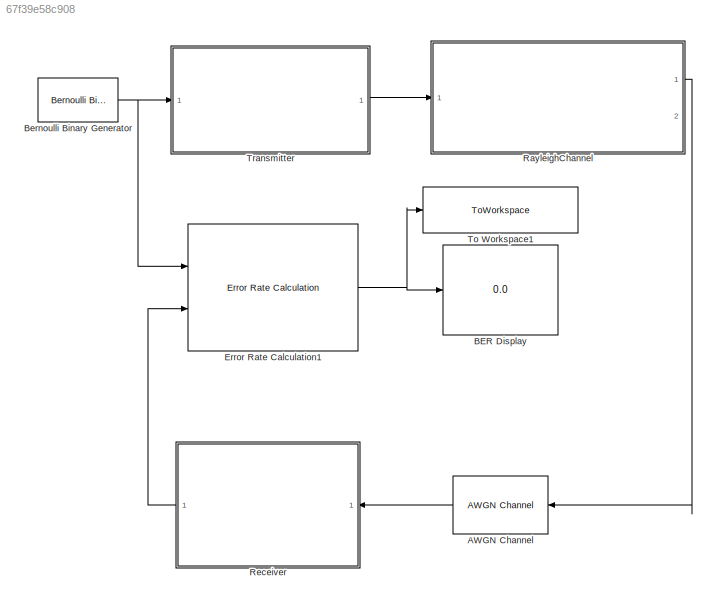
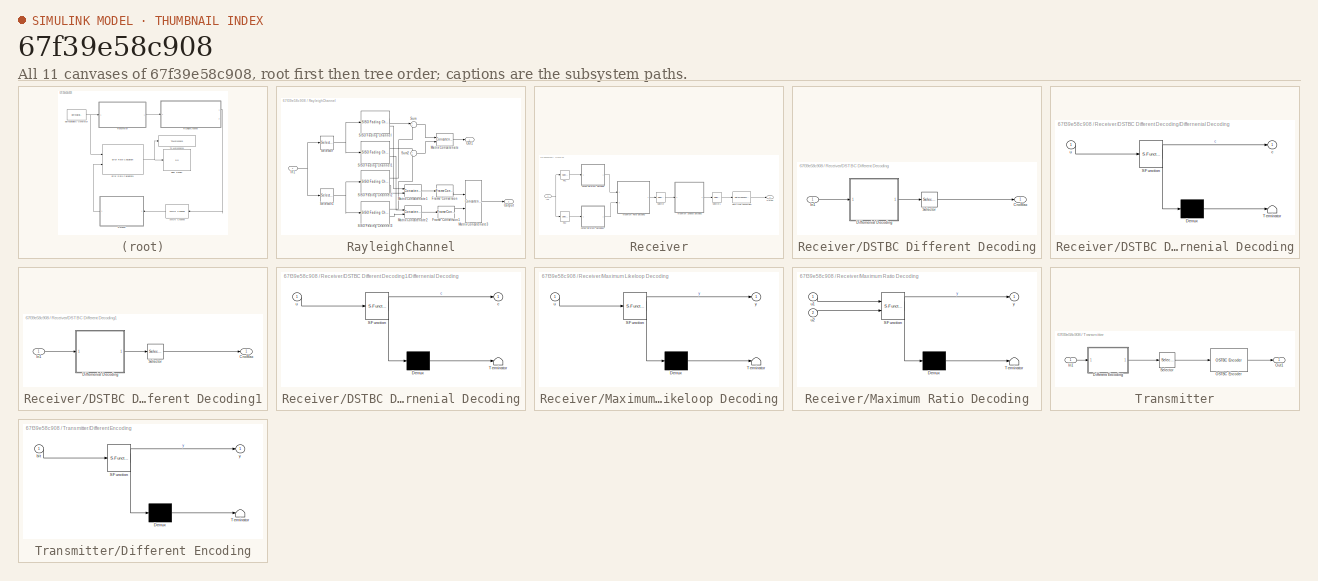
[diagram: thumbnail index - all 11 canvases of the model, root first then tree order]
MODEL slx_67f39e58c908
KIND model
CONFIG AbsTol = auto
CONFIG EnableMultiTasking = off
CONFIG FixedStep = auto
CONFIG MaxStep = auto
CONFIG MinStep = auto
CONFIG RelTol = 1e-3
CONFIG SampleTimeConstraint = Unconstrained
CONFIG Solver = VariableStepAuto
CONFIG SolverName = VariableStepAuto
CONFIG StartTime = 0.0
CONFIG StopTime = 10
WORKSPACE source: MAT-file member
WORKSPACE FrameLength = 100
BLOCK [Reference] AWGN Channel  REF=commchan3/AWGN
Channel
  Ports = [1, 1]
  SourceBlock = commchan3/AWGN\nChannel
  SourceProductBaseCode = CM
  SourceProductName = Communications System Toolbox
  SourceType = AWGN Channel
  UserDataPersistent = on
BLOCK [Display] BER Display
  Decimation = 1
  Ports = [1]
BLOCK [Reference] Bernoulli Binary Generator  REF=commrandsrc3/Bernoulli Binary
Generator
  Ports = [0, 1]
  SourceBlock = commrandsrc3/Bernoulli Binary\nGenerator
  SourceProductBaseCode = CM
  SourceProductName = Communications System Toolbox
  SourceType = Bernoulli Binary Generator
BLOCK [Reference] Error Rate Calculation1  REF=commsink2/Error Rate
Calculation
  Ports = [2, 1]
  SourceBlock = commsink2/Error Rate\nCalculation
  SourceProductBaseCode = CM
  SourceProductName = Communications System Toolbox
  SourceType = Error Rate Calculation
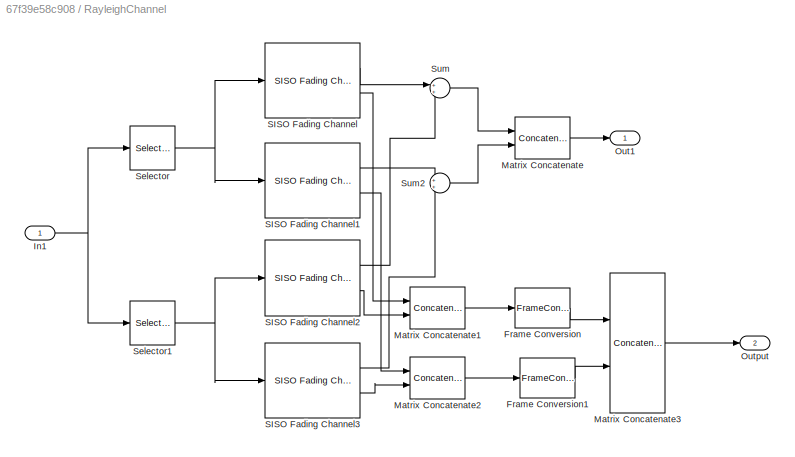
BLOCK [SubSystem] RayleighChannel
  Ports = [1, 2]
  RequestExecContextInheritance = off
BLOCK [FrameConversion] RayleighChannel/Frame Conversion
  OutFrame = Sample-based
  Ports = [1, 1]
BLOCK [FrameConversion] RayleighChannel/Frame Conversion1
  OutFrame = Sample-based
  Ports = [1, 1]
BLOCK [Inport] RayleighChannel/In1
  IconDisplay = Port number
BLOCK [Concatenate] RayleighChannel/Matrix Concatenate
  ConcatenateDimension = 2
  Mode = Multidimensional array
  Ports = [2, 1]
BLOCK [Concatenate] RayleighChannel/Matrix Concatenate1
  ConcatenateDimension = 2
  Mode = Multidimensional array
  Ports = [2, 1]
BLOCK [Concatenate] RayleighChannel/Matrix Concatenate2
  ConcatenateDimension = 2
  Mode = Multidimensional array
  Ports = [2, 1]
BLOCK [Concatenate] RayleighChannel/Matrix Concatenate3
  ConcatenateDimension = 3
  Mode = Multidimensional array
  Ports = [2, 1]
BLOCK [Outport] RayleighChannel/Out1
  IconDisplay = Port number
BLOCK [Outport] RayleighChannel/Output
  IconDisplay = Port number
  Port = 2
BLOCK [Reference] RayleighChannel/SISO Fading Channel  REF=commchan3/SISO Fading Channel
  Ports = [1, 2]
  SourceBlock = commchan3/SISO Fading Channel
  SourceProductBaseCode = CM
  SourceProductName = Communications System Toolbox
  SourceType = SISO Fading Channel
BLOCK [Reference] RayleighChannel/SISO Fading Channel1  REF=commchan3/SISO Fading Channel
  Ports = [1, 2]
  SourceBlock = commchan3/SISO Fading Channel
  SourceProductBaseCode = CM
  SourceProductName = Communications System Toolbox
  SourceType = SISO Fading Channel
BLOCK [Reference] RayleighChannel/SISO Fading Channel2  REF=commchan3/SISO Fading Channel
  Ports = [1, 2]
  SourceBlock = commchan3/SISO Fading Channel
  SourceProductBaseCode = CM
  SourceProductName = Communications System Toolbox
  SourceType = SISO Fading Channel
BLOCK [Reference] RayleighChannel/SISO Fading Channel3  REF=commchan3/SISO Fading Channel
  Ports = [1, 2]
  SourceBlock = commchan3/SISO Fading Channel
  SourceProductBaseCode = CM
  SourceProductName = Communications System Toolbox
  SourceType = SISO Fading Channel
BLOCK [Selector] RayleighChannel/Selector
  IndexOptions = Select all,Index vector (dialog)
  Indices = [1 3],1
  InputPortWidth = 3
  NumberOfDimensions = 2
  OutputSizes = 1,1
  Ports = [1, 1]
BLOCK [Selector] RayleighChannel/Selector1
  IndexOptions = Select all,Index vector (dialog)
  Indices = [1 3],2
  InputPortWidth = 3
  NumberOfDimensions = 2
  OutputSizes = 1,1
  Ports = [1, 1]
BLOCK [Sum] RayleighChannel/Sum
  IconShape = round
  InputSameDT = off
  OutDataTypeStr = Inherit: Inherit via internal rule
  Ports = [2, 1]
  SaturateOnIntegerOverflow = off
BLOCK [Sum] RayleighChannel/Sum2
  IconShape = round
  InputSameDT = off
  OutDataTypeStr = Inherit: Inherit via internal rule
  Ports = [2, 1]
  SaturateOnIntegerOverflow = off
BLOCK [SubSystem] Receiver
  Ports = [1, 1]
  RequestExecContextInheritance = off
BLOCK [SubSystem] Receiver/DSTBC Different Decoding
  Ports = [1, 1]
  RequestExecContextInheritance = off
BLOCK [Outport] Receiver/DSTBC Different Decoding/CnoMax
  IconDisplay = Port number
BLOCK [SubSystem] Receiver/DSTBC Different Decoding/Differnenial Decoding
  ErrorFcn = Stateflow.Translate.translate
  PermitHierarchicalResolution = ExplicitOnly
  Ports = [1, 1]
  RequestExecContextInheritance = off
  SFBlockType = MATLAB Function
  TreatAsAtomicUnit = on
BLOCK [Demux] Receiver/DSTBC Different Decoding/Differnenial Decoding/ Demux 
  Outputs = 1
  Ports = [1, 1]
BLOCK [S-Function] Receiver/DSTBC Different Decoding/Differnenial Decoding/ SFunction 
  EnableBusSupport = on
  FunctionName = sf_sfun
  PortCounts = [1 2]
  Ports = [1, 2]
  SFcnIsStateOwnerBlock = off
  SFunctionDeploymentMode = off
  Tag = Stateflow S-Function naibaoDSTBC_22_qpsk 4
BLOCK [Terminator] Receiver/DSTBC Different Decoding/Differnenial Decoding/ Terminator 
BLOCK [Outport] Receiver/DSTBC Different Decoding/Differnenial Decoding/c
  IconDisplay = Port number
BLOCK [Inport] Receiver/DSTBC Different Decoding/Differnenial Decoding/u
  IconDisplay = Port number
BLOCK [Inport] Receiver/DSTBC Different Decoding/In1
  IconDisplay = Port number
BLOCK [Selector] Receiver/DSTBC Different Decoding/Selector
  IndexOptions = Select all,Index vector (dialog)
  Indices = [1 3],1
  InputPortWidth = 3
  NumberOfDimensions = 2
  OutputSizes = 1,1
  Ports = [1, 1]
BLOCK [SubSystem] Receiver/DSTBC Different Decoding1
  Ports = [1, 1]
  RequestExecContextInheritance = off
BLOCK [Outport] Receiver/DSTBC Different Decoding1/CnoMax
  IconDisplay = Port number
BLOCK [SubSystem] Receiver/DSTBC Different Decoding1/Differnenial Decoding
  ErrorFcn = Stateflow.Translate.translate
  PermitHierarchicalResolution = ExplicitOnly
  Ports = [1, 1]
  RequestExecContextInheritance = off
  SFBlockType = MATLAB Function
  TreatAsAtomicUnit = on
BLOCK [Demux] Receiver/DSTBC Different Decoding1/Differnenial Decoding/ Demux 
  Outputs = 1
  Ports = [1, 1]
BLOCK [S-Function] Receiver/DSTBC Different Decoding1/Differnenial Decoding/ SFunction 
  EnableBusSupport = on
  FunctionName = sf_sfun
  PortCounts = [1 2]
  Ports = [1, 2]
  SFcnIsStateOwnerBlock = off
  SFunctionDeploymentMode = off
  Tag = Stateflow S-Function naibaoDSTBC_22_qpsk 1
BLOCK [Terminator] Receiver/DSTBC Different Decoding1/Differnenial Decoding/ Terminator 
BLOCK [Outport] Receiver/DSTBC Different Decoding1/Differnenial Decoding/c
  IconDisplay = Port number
BLOCK [Inport] Receiver/DSTBC Different Decoding1/Differnenial Decoding/u
  IconDisplay = Port number
BLOCK [Inport] Receiver/DSTBC Different Decoding1/In1
  IconDisplay = Port number
BLOCK [Selector] Receiver/DSTBC Different Decoding1/Selector
  IndexOptions = Select all,Index vector (dialog)
  Indices = [1 3],1
  InputPortWidth = 3
  NumberOfDimensions = 2
  OutputSizes = 1,1
  Ports = [1, 1]
BLOCK [DataTypeConversion] Receiver/Data Type Conversion
  OutDataTypeStr = boolean
  RndMeth = Floor
  SaturateOnIntegerOverflow = off
BLOCK [Inport] Receiver/In1
  IconDisplay = Port number
BLOCK [SubSystem] Receiver/Maximum Likeloop Decoding
  ErrorFcn = Stateflow.Translate.translate
  PermitHierarchicalResolution = ExplicitOnly
  Ports = [1, 1]
  RequestExecContextInheritance = off
  SFBlockType = MATLAB Function
  TreatAsAtomicUnit = on
BLOCK [Demux] Receiver/Maximum Likeloop Decoding/ Demux 
  Outputs = 1
  Ports = [1, 1]
BLOCK [S-Function] Receiver/Maximum Likeloop Decoding/ SFunction 
  EnableBusSupport = on
  FunctionName = sf_sfun
  PortCounts = [1 2]
  Ports = [1, 2]
  SFcnIsStateOwnerBlock = off
  SFunctionDeploymentMode = off
  Tag = Stateflow S-Function naibaoDSTBC_22_qpsk 3
BLOCK [Terminator] Receiver/Maximum Likeloop Decoding/ Terminator 
BLOCK [Inport] Receiver/Maximum Likeloop Decoding/u
  IconDisplay = Port number
BLOCK [Outport] Receiver/Maximum Likeloop Decoding/y
  IconDisplay = Port number
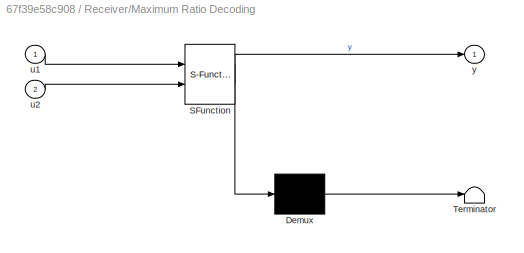
BLOCK [SubSystem] Receiver/Maximum Ratio Decoding
  ErrorFcn = Stateflow.Translate.translate
  PermitHierarchicalResolution = ExplicitOnly
  Ports = [2, 1]
  RequestExecContextInheritance = off
  SFBlockType = MATLAB Function
  TreatAsAtomicUnit = on
BLOCK [Demux] Receiver/Maximum Ratio Decoding/ Demux 
  Outputs = 1
  Ports = [1, 1]
BLOCK [S-Function] Receiver/Maximum Ratio Decoding/ SFunction 
  EnableBusSupport = on
  FunctionName = sf_sfun
  PortCounts = [2 2]
  Ports = [2, 2]
  SFcnIsStateOwnerBlock = off
  SFunctionDeploymentMode = off
  Tag = Stateflow S-Function naibaoDSTBC_22_qpsk 5
BLOCK [Terminator] Receiver/Maximum Ratio Decoding/ Terminator 
BLOCK [Inport] Receiver/Maximum Ratio Decoding/u1
  IconDisplay = Port number
BLOCK [Inport] Receiver/Maximum Ratio Decoding/u2
  IconDisplay = Port number
  Port = 2
BLOCK [Outport] Receiver/Maximum Ratio Decoding/y
  IconDisplay = Port number
BLOCK [Outport] Receiver/Output
  IconDisplay = Port number
BLOCK [Selector] Receiver/Rx1
  IndexOptions = Select all,Index vector (dialog)
  Indices = [1 3],1
  InputPortWidth = 3
  NumberOfDimensions = 2
  OutputSizes = 1,1
  Ports = [1, 1]
BLOCK [Selector] Receiver/Rx2
  IndexOptions = Select all,Index vector (dialog)
  Indices = [1 3],2
  InputPortWidth = 3
  NumberOfDimensions = 2
  OutputSizes = 1,1
  Ports = [1, 1]
BLOCK [Selector] Receiver/Selector
  IndexOptions = Select all,Index vector (dialog)
  Indices = [1 3],1
  InputPortWidth = 3
  NumberOfDimensions = 2
  OutputSizes = 1,1
  Ports = [1, 1]
BLOCK [Selector] Receiver/Selector1
  IndexOptions = Select all,Index vector (dialog)
  Indices = [1 3],1
  InputPortWidth = 3
  NumberOfDimensions = 2
  OutputSizes = 1,1
  Ports = [1, 1]
BLOCK [ToWorkspace] To Workspace1
  MaxDataPoints = 1
  Ports = [1]
  SampleTime = -1
  Save2DSignal = 2-D array (concatenate along first dimension)
  VariableName = BER_DSTBC_22_QPSK
BLOCK [SubSystem] Transmitter
  Ports = [1, 1]
  RequestExecContextInheritance = off
BLOCK [SubSystem] Transmitter/Different Encoding
  ErrorFcn = Stateflow.Translate.translate
  PermitHierarchicalResolution = ExplicitOnly
  Ports = [1, 1]
  RequestExecContextInheritance = off
  SFBlockType = MATLAB Function
  TreatAsAtomicUnit = on
BLOCK [Demux] Transmitter/Different Encoding/ Demux 
  Outputs = 1
  Ports = [1, 1]
BLOCK [S-Function] Transmitter/Different Encoding/ SFunction 
  EnableBusSupport = on
  FunctionName = sf_sfun
  PortCounts = [1 2]
  Ports = [1, 2]
  SFcnIsStateOwnerBlock = off
  SFunctionDeploymentMode = off
  Tag = Stateflow S-Function naibaoDSTBC_22_qpsk 2
BLOCK [Terminator] Transmitter/Different Encoding/ Terminator 
BLOCK [Inport] Transmitter/Different Encoding/bit
  IconDisplay = Port number
BLOCK [Outport] Transmitter/Different Encoding/y
  IconDisplay = Port number
BLOCK [Inport] Transmitter/In1
  IconDisplay = Port number
BLOCK [Reference] Transmitter/OSTBC Encoder  REF=commmimo/OSTBC Encoder
  Ports = [1, 1]
  SourceBlock = commmimo/OSTBC Encoder
  SourceProductBaseCode = CM
  SourceProductName = Communications System Toolbox
  SourceType = OSTBC Encoder
BLOCK [Outport] Transmitter/Out1
  IconDisplay = Port number
BLOCK [Selector] Transmitter/Selector
  IndexOptions = Select all,Index vector (dialog)
  Indices = [1 3],1
  InputPortWidth = 3
  NumberOfDimensions = 2
  OutputSizes = 1,1
  Ports = [1, 1]
LINE AWGN Channel:1 -> Receiver:1
NET Bernoulli Binary Generator:1 -> Error Rate Calculation1:1, Transmitter:1
NET Error Rate Calculation1:1 -> BER Display:1, To Workspace1:1
LINE RayleighChannel/Frame Conversion1:1 -> RayleighChannel/Matrix Concatenate3:2
LINE RayleighChannel/Frame Conversion:1 -> RayleighChannel/Matrix Concatenate3:1
NET RayleighChannel/In1:1 -> RayleighChannel/Selector1:1, RayleighChannel/Selector:1
LINE RayleighChannel/Matrix Concatenate1:1 -> RayleighChannel/Frame Conversion:1
LINE RayleighChannel/Matrix Concatenate2:1 -> RayleighChannel/Frame Conversion1:1
LINE RayleighChannel/Matrix Concatenate3:1 -> RayleighChannel/Output:1
LINE RayleighChannel/Matrix Concatenate:1 -> RayleighChannel/Out1:1
LINE RayleighChannel/SISO Fading Channel1:1 -> RayleighChannel/Sum2:1
LINE RayleighChannel/SISO Fading Channel1:2 -> RayleighChannel/Matrix Concatenate2:1
LINE RayleighChannel/SISO Fading Channel2:1 -> RayleighChannel/Sum:2
LINE RayleighChannel/SISO Fading Channel2:2 -> RayleighChannel/Matrix Concatenate1:2
LINE RayleighChannel/SISO Fading Channel3:1 -> RayleighChannel/Sum2:2
LINE RayleighChannel/SISO Fading Channel3:2 -> RayleighChannel/Matrix Concatenate2:2
LINE RayleighChannel/SISO Fading Channel:1 -> RayleighChannel/Sum:1
LINE RayleighChannel/SISO Fading Channel:2 -> RayleighChannel/Matrix Concatenate1:1
NET RayleighChannel/Selector1:1 -> RayleighChannel/SISO Fading Channel2:1, RayleighChannel/SISO Fading Channel3:1
NET RayleighChannel/Selector:1 -> RayleighChannel/SISO Fading Channel1:1, RayleighChannel/SISO Fading Channel:1
LINE RayleighChannel/Sum2:1 -> RayleighChannel/Matrix Concatenate:2
LINE RayleighChannel/Sum:1 -> RayleighChannel/Matrix Concatenate:1
LINE RayleighChannel:1 -> AWGN Channel:1
LINE Receiver/DSTBC Different Decoding/Differnenial Decoding:1 -> Receiver/DSTBC Different Decoding/Selector:1
LINE Receiver/DSTBC Different Decoding/In1:1 -> Receiver/DSTBC Different Decoding/Differnenial Decoding:1
LINE Receiver/DSTBC Different Decoding/Selector:1 -> Receiver/DSTBC Different Decoding/CnoMax:1
LINE Receiver/DSTBC Different Decoding1/Differnenial Decoding:1 -> Receiver/DSTBC Different Decoding1/Selector:1
LINE Receiver/DSTBC Different Decoding1/In1:1 -> Receiver/DSTBC Different Decoding1/Differnenial Decoding:1
LINE Receiver/DSTBC Different Decoding1/Selector:1 -> Receiver/DSTBC Different Decoding1/CnoMax:1
LINE Receiver/DSTBC Different Decoding1:1 -> Receiver/Maximum Ratio Decoding:2
LINE Receiver/DSTBC Different Decoding:1 -> Receiver/Maximum Ratio Decoding:1
LINE Receiver/Data Type Conversion:1 -> Receiver/Output:1
NET Receiver/In1:1 -> Receiver/Rx1:1, Receiver/Rx2:1
LINE Receiver/Maximum Likeloop Decoding:1 -> Receiver/Selector1:1
LINE Receiver/Maximum Ratio Decoding:1 -> Receiver/Selector:1
LINE Receiver/Rx1:1 -> Receiver/DSTBC Different Decoding:1
LINE Receiver/Rx2:1 -> Receiver/DSTBC Different Decoding1:1
LINE Receiver/Selector1:1 -> Receiver/Data Type Conversion:1
LINE Receiver/Selector:1 -> Receiver/Maximum Likeloop Decoding:1
LINE Receiver:1 -> Error Rate Calculation1:2
LINE Transmitter/Different Encoding:1 -> Transmitter/Selector:1
LINE Transmitter/In1:1 -> Transmitter/Different Encoding:1
LINE Transmitter/OSTBC Encoder:1 -> Transmitter/Out1:1
LINE Transmitter/Selector:1 -> Transmitter/OSTBC Encoder:1
LINE Transmitter:1 -> RayleighChannel:1
note: NET lines group one-source signal fan-out (src -> all destinations, sorted); 1:1 wires keep LINE
CHART Receiver/DSTBC Different Decoding1/Differnenial Decoding states=1 transitions=1
  STATE_LABEL 'eML_blk_kernel()'
  STATE_LABEL "SCRIPT:\nfunction c = DifferenialDecode(u)\n%% 基本参数\n%获取帧长\ns = size(u);\n%分组块数\nblock = ( s(1)-2 ) /2;\n%当前的接受信号Current_S1,Current_S2\ncurrent_S1 = u(1);\ncurrent_S2 = u(2);\n%C1,C2\nc1 = complex(zeros(block,2));\nc2 = complex(zeros(block,2));\n%输出序列C\nc = complex(zeros(s(1)-2,2));\n%% 循环实现\nfor i=1:block\n    %编写信号X1,X2,X3\n    X1=[current_S1,current_S2'];\n    X3=[u(2*i+1,1),u(2*i+2,1)'];\n    X2=[current_S2,-curr...<+181ch>"
CHART Transmitter/Different Encoding states=1 transitions=1
  STATE_LABEL 'eML_blk_kernel()'
  STATE_LABEL 'SCRIPT:\nfunction y = differentEncoding(bit)\n%% 初始化参数\n% 获取帧长\ns=size(bit);\nFrameLen=s(1);\n%设定初始的参考星座\ncurrent_S1=1/sqrt(2)+0i;\ncurrent_S2=1/sqrt(2)+0i;\n%初始化系数\nR1=0+0i;\nR2=0+0i;\n%设定初始的输出序列\ny=complex(zeros(FrameLen/2+2,2));\n%将初始的参考星座赋值到输出序列\ny(1,1)=current_S1;\ny(2,1)=current_S2;\n%编码矩阵\nw= [1.0000 + 0.0000i   0.0000 + 0.0000i;\n   0.5000 + 0.5000i  -0.5000 + 0.5000i;\n   0.0000 + 0.0000i  -1.0000 + 0.0000i;...<+876ch>'
CHART Receiver/Maximum Likeloop Decoding states=1 transitions=1
  STATE_LABEL 'eML_blk_kernel()'
  STATE_LABEL 'SCRIPT:\nfunction y = maximumLikeloopDeccoding(u)\n%% 基本参数\n%获取帧长\ns=size(u);\nFrameLen=s(1);\n%初始化输出序列\ny=zeros(FrameLen*2,2);\n%译码矩阵\nw=[1.0000 + 0.0000i   0.0000 + 0.0000i;\n   0.5000 + 0.5000i  -0.5000 + 0.5000i;\n   0.0000 + 0.0000i  -1.0000 + 0.0000i;\n   0.5000 - 0.5000i  -0.5000 - 0.5000i;\n   0.5000 + 0.5000i   0.5000 - 0.5000i;\n   0.0000 + 1.0000i   0.0000 + 0.0000i;\n  -0.5000 + 0.5000i  -0.5000 - 0....<+943ch>'
CHART Receiver/DSTBC Different Decoding/Differnenial Decoding states=1 transitions=1
  STATE_LABEL 'eML_blk_kernel()'
  STATE_LABEL "SCRIPT:\nfunction c = DifferenialDecode(u)\n%% 基本参数\n%获取帧长\ns = size(u);\n%分组块数\nblock = ( s(1)-2 ) /2;\n%当前的接受信号Current_S1,Current_S2\ncurrent_S1 = u(1);\ncurrent_S2 = u(2);\n%C1,C2\nc1 = complex(zeros(block,2));\nc2 = complex(zeros(block,2));\n%输出序列C\nc = complex(zeros(s(1)-2,2));\n%% 循环实现\nfor i=1:block\n    %编写信号X1,X2,X3\n    X1=[current_S1,current_S2'];\n    X3=[u(2*i+1,1),u(2*i+2,1)'];\n    X2=[current_S2,-curr...<+181ch>"
CHART Receiver/Maximum Ratio Decoding states=1 transitions=1
  STATE_LABEL 'eML_blk_kernel()'
  STATE_LABEL 'SCRIPT:\nfunction y = mrd(u1,u2)\n%两条信道完全对称,直接等增益合并\ns=size(u1);\ny=complex( zeros(s(1),2));\nfor i=1:s(1)\n    y(i,1)=(u1(i)+u2(i))/2;\nend\n'
